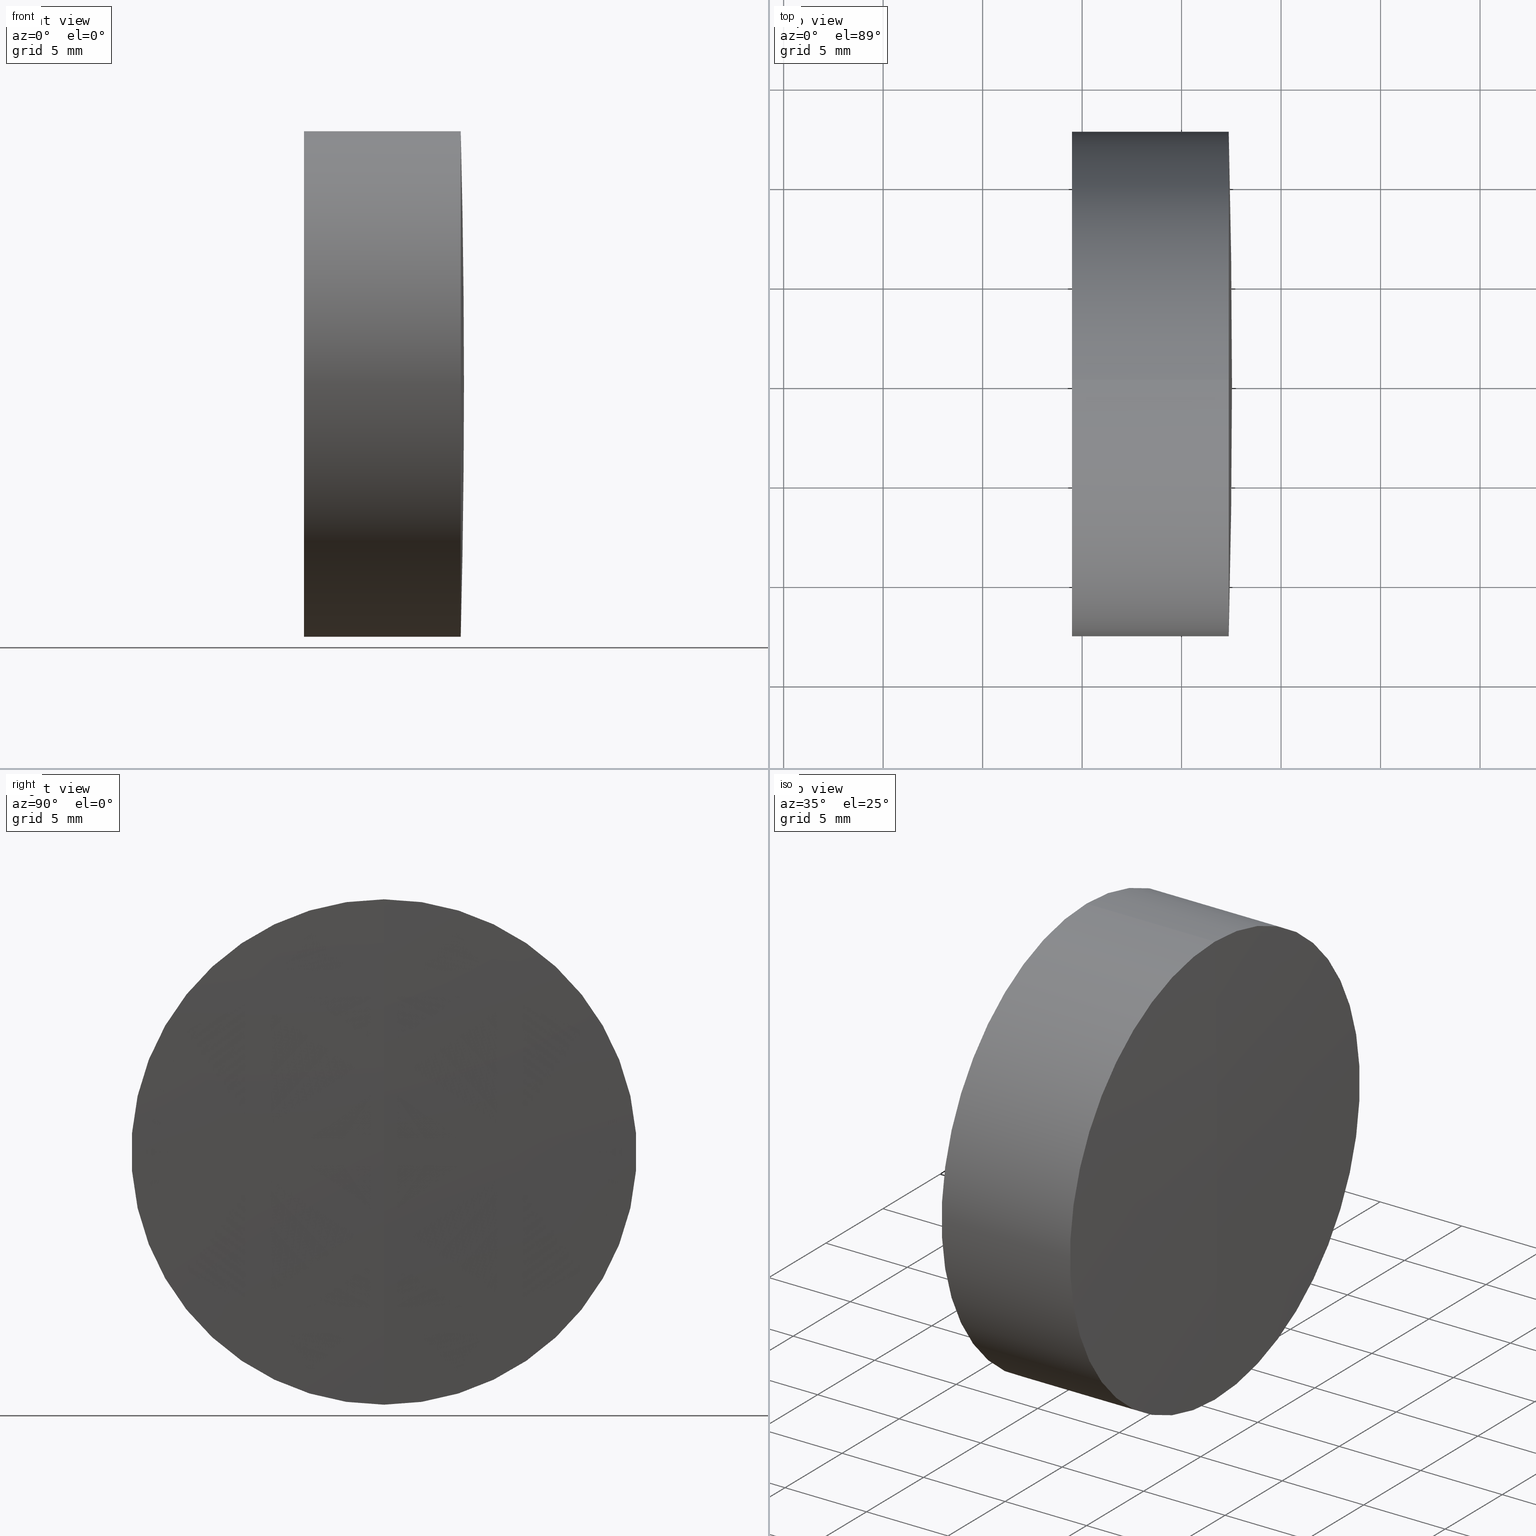
[diagram: canonical four-view strip — front | top / right | iso, engineering-drawing reading convention]
A machine part, canonical four-view strip (front | top / right | iso — engineering-drawing reading convention). The complete STEP part file that produces these views, byte-faithful:
ISO-10303-21;
HEADER;
FILE_DESCRIPTION (( 'STEP AP214' ),
    '1' );
FILE_NAME ('145211.STEP',
    '2019-06-14T01:40:56',
    ( 'user' ),
    ( '΢���й�' ),
    'SwSTEP 2.0',
    'SolidWorks 2016',
    '' );
FILE_SCHEMA (( 'AUTOMOTIVE_DESIGN' ));
ENDSEC;

DATA;
#1 = CARTESIAN_POINT ( 'NONE',  ( 144.4937671120052900, 1.555301434917136300E-015, -12.70000000000005300 ) ) ;
#2 = DIRECTION ( 'NONE',  ( 0.0000000000000000000, 0.0000000000000000000, -1.000000000000000000 ) ) ;
#3 = AXIS2_PLACEMENT_3D ( 'NONE', #50, #74, #339 ) ;
#4 = CARTESIAN_POINT ( 'NONE',  ( 150.5048937077423800, 0.0000000000000000000, 12.69999999999996900 ) ) ;
#5 = EDGE_CURVE ( 'NONE', #44, #139, #275, .T. ) ;
#6 =( NAMED_UNIT ( * ) PLANE_ANGLE_UNIT ( ) SI_UNIT ( $, .RADIAN. ) );
#7 = DIRECTION ( 'NONE',  ( 0.0000000000000000000, -1.000000000000000000, 0.0000000000000000000 ) ) ;
#8 = ORIENTED_EDGE ( 'NONE', *, *, #159, .F. ) ;
#9 = SPHERICAL_SURFACE ( 'NONE', #151, 46.39000000000000100 ) ;
#10 = CARTESIAN_POINT ( 'NONE',  ( 144.4937671120052900, 0.0000000000000000000, 0.0000000000000000000 ) ) ;
#11 = AXIS2_PLACEMENT_3D ( 'NONE', #235, #150, #181 ) ;
#12 = PRODUCT_CONTEXT ( 'NONE', #243, 'mechanical' ) ;
#13 = ADVANCED_FACE ( 'NONE', ( #42 ), #155, .T. ) ;
#14 = AXIS2_PLACEMENT_3D ( 'NONE', #34, #220, #133 ) ;
#15 = CARTESIAN_POINT ( 'NONE',  ( 195.1226267294905800, 0.0000000000000000000, -6.053013924752350100E-014 ) ) ;
#16 = LINE ( 'NONE', #99, #283 ) ;
#17 =( NAMED_UNIT ( * ) PLANE_ANGLE_UNIT ( ) SI_UNIT ( $, .RADIAN. ) );
#18 = CIRCLE ( 'NONE', #276, 12.69999999999999000 ) ;
#19 = VERTEX_POINT ( 'NONE', #115 ) ;
#20 = DIRECTION ( 'NONE',  ( -1.000000000000000000, -0.0000000000000000000, 2.184929092829751300E-016 ) ) ;
#21 = VERTEX_POINT ( 'NONE', #272 ) ;
#22 = CARTESIAN_POINT ( 'NONE',  ( 146.7326267294905600, 0.0000000000000000000, -6.637079679227676800E-014 ) ) ;
#23 = CARTESIAN_POINT ( 'NONE',  ( 150.5048937077423800, 1.555301434917137400E-015, -12.70000000000004400 ) ) ;
#24 =( NAMED_UNIT ( * ) PLANE_ANGLE_UNIT ( ) SI_UNIT ( $, .RADIAN. ) );
#25 = DIRECTION ( 'NONE',  ( 0.0000000000000000000, 0.0000000000000000000, -1.000000000000000000 ) ) ;
#26 = AXIS2_PLACEMENT_3D ( 'NONE', #280, #79, #260 ) ;
#27 = FACE_OUTER_BOUND ( 'NONE', #343, .T. ) ;
#28 = EDGE_CURVE ( 'NONE', #239, #149, #162, .T. ) ;
#29 = ORIENTED_EDGE ( 'NONE', *, *, #40, .F. ) ;
#30 = CARTESIAN_POINT ( 'NONE',  ( -185.2744740506581700, 0.0000000000000000000, 2.052032605930108700E-014 ) ) ;
#31 = CARTESIAN_POINT ( 'NONE',  ( 195.1226267294905800, 0.0000000000000000000, -6.053013924752350100E-014 ) ) ;
#32 = AXIS2_PLACEMENT_3D ( 'NONE', #10, #289, #61 ) ;
#33 = ORIENTED_EDGE ( 'NONE', *, *, #142, .T. ) ;
#34 = CARTESIAN_POINT ( 'NONE',  ( 195.1226267294905800, 0.0000000000000000000, -6.053013924752350100E-014 ) ) ;
#35 =( NAMED_UNIT ( * ) SI_UNIT ( $, .STERADIAN. ) SOLID_ANGLE_UNIT ( ) );
#36 = UNCERTAINTY_MEASURE_WITH_UNIT (LENGTH_MEASURE( 1.000000000000000100E-005 ), #179, 'distance_accuracy_value', 'NONE');
#37 = ORIENTED_EDGE ( 'NONE', *, *, #40, .T. ) ;
#38 = PRODUCT_DEFINITION ( 'δ֪', '', #312, #287 ) ;
#39 = DIRECTION ( 'NONE',  ( 0.0000000000000000000, -1.224646799147353200E-016, 1.000000000000000000 ) ) ;
#40 = EDGE_CURVE ( 'NONE', #304, #208, #256, .T. ) ;
#41 = SHAPE_DEFINITION_REPRESENTATION ( #199, #314 ) ;
#42 = FACE_OUTER_BOUND ( 'NONE', #211, .T. ) ;
#43 = SPHERICAL_SURFACE ( 'NONE', #132, 37.14000000000000100 ) ;
#44 = VERTEX_POINT ( 'NONE', #329 ) ;
#45 = EDGE_LOOP ( 'NONE', ( #233, #284, #166 ) ) ;
#46 = CIRCLE ( 'NONE', #52, 12.69999999999997100 ) ;
#47 = EDGE_CURVE ( 'NONE', #239, #337, #286, .T. ) ;
#48 = DIRECTION ( 'NONE',  ( -1.000000000000000000, -0.0000000000000000000, -0.0000000000000000000 ) ) ;
#49 = AXIS2_PLACEMENT_3D ( 'NONE', #15, #169, #305 ) ;
#50 = CARTESIAN_POINT ( 'NONE',  ( 150.5048937077423800, 0.0000000000000000000, 0.0000000000000000000 ) ) ;
#51 = DIRECTION ( 'NONE',  ( -1.000000000000000000, -0.0000000000000000000, 2.184929092829751300E-016 ) ) ;
#52 = AXIS2_PLACEMENT_3D ( 'NONE', #57, #86, #295 ) ;
#53 = ORIENTED_EDGE ( 'NONE', *, *, #83, .T. ) ;
#54 = CARTESIAN_POINT ( 'NONE',  ( 144.4937671120052900, 0.0000000000000000000, 12.69999999999993400 ) ) ;
#55 = MANIFOLD_SOLID_BREP ( '��ת1', #214 ) ;
#56 = CARTESIAN_POINT ( 'NONE',  ( 109.5926267294905600, 0.0000000000000000000, -6.053013924752370300E-014 ) ) ;
#57 = CARTESIAN_POINT ( 'NONE',  ( 150.5048937077423800, 0.0000000000000000000, 0.0000000000000000000 ) ) ;
#58 = CLOSED_SHELL ( 'NONE', ( #198, #13, #219, #299, #332, #324 ) ) ;
#59 = SURFACE_SIDE_STYLE ('',( #218 ) ) ;
#60 = SURFACE_STYLE_USAGE ( .BOTH. , #248 ) ;
#61 = DIRECTION ( 'NONE',  ( 0.0000000000000000000, 0.0000000000000000000, 1.000000000000000000 ) ) ;
#62 = ORIENTED_EDGE ( 'NONE', *, *, #80, .F. ) ;
#63 = AXIS2_PLACEMENT_3D ( 'NONE', #141, #221, #195 ) ;
#64 = ADVANCED_FACE ( 'NONE', ( #269 ), #241, .T. ) ;
#65 = MANIFOLD_SOLID_BREP ( '��ת3', #58 ) ;
#66 = STYLED_ITEM ( 'NONE', ( #131 ), #65 ) ;
#67 = DIRECTION ( 'NONE',  ( -1.000000000000000000, -0.0000000000000000000, 2.184929092829751300E-016 ) ) ;
#68 = FACE_OUTER_BOUND ( 'NONE', #45, .T. ) ;
#69 = CYLINDRICAL_SURFACE ( 'NONE', #300, 12.69999999999999000 ) ;
#70 = ORIENTED_EDGE ( 'NONE', *, *, #322, .T. ) ;
#71 = AXIS2_PLACEMENT_3D ( 'NONE', #161, #336, #114 ) ;
#72 = ORIENTED_EDGE ( 'NONE', *, *, #242, .F. ) ;
#73 = LINE ( 'NONE', #152, #190 ) ;
#74 = DIRECTION ( 'NONE',  ( -1.000000000000000000, -0.0000000000000000000, -0.0000000000000000000 ) ) ;
#75 = CIRCLE ( 'NONE', #244, 12.69999999999999000 ) ;
#76 = CARTESIAN_POINT ( 'NONE',  ( 152.3694498868020200, 0.0000000000000000000, 0.0000000000000000000 ) ) ;
#77 = DIRECTION ( 'NONE',  ( 0.0000000000000000000, 0.0000000000000000000, 1.000000000000000000 ) ) ;
#78 = FACE_OUTER_BOUND ( 'NONE', #319, .T. ) ;
#79 = DIRECTION ( 'NONE',  ( 0.0000000000000000000, -1.000000000000000000, 0.0000000000000000000 ) ) ;
#80 = EDGE_CURVE ( 'NONE', #208, #21, #160, .T. ) ;
#81 =( LENGTH_UNIT ( ) NAMED_UNIT ( * ) SI_UNIT ( .MILLI., .METRE. ) );
#82 = DIRECTION ( 'NONE',  ( -1.000000000000000000, -0.0000000000000000000, -0.0000000000000000000 ) ) ;
#83 = EDGE_CURVE ( 'NONE', #19, #139, #277, .T. ) ;
#84 = SPHERICAL_SURFACE ( 'NONE', #338, 494.2999999999999500 ) ;
#85 = COLOUR_RGB ( '',1.000000000000000000, 1.000000000000000000, 1.000000000000000000 ) ;
#86 = DIRECTION ( 'NONE',  ( -1.000000000000000000, -0.0000000000000000000, -0.0000000000000000000 ) ) ;
#87 =( LENGTH_UNIT ( ) NAMED_UNIT ( * ) SI_UNIT ( .MILLI., .METRE. ) );
#88 = FILL_AREA_STYLE ('',( #327 ) ) ;
#89 = ORIENTED_EDGE ( 'NONE', *, *, #344, .T. ) ;
#90 = AXIS2_PLACEMENT_3D ( 'NONE', #170, #116, #39 ) ;
#91 = ORIENTED_EDGE ( 'NONE', *, *, #28, .F. ) ;
#92 = DIRECTION ( 'NONE',  ( -1.000000000000000000, -0.0000000000000000000, 2.184929092829751300E-016 ) ) ;
#93 = STYLED_ITEM ( 'NONE', ( #232 ), #55 ) ;
#94 = ADVANCED_FACE ( 'NONE', ( #268 ), #216, .F. ) ;
#95 = FACE_OUTER_BOUND ( 'NONE', #122, .T. ) ;
#96 = PRODUCT ( '145211', '145211', '', ( #12 ) ) ;
#97 = PRESENTATION_LAYER_ASSIGNMENT (  '', '', ( #66 ) ) ;
#98 = DIRECTION ( 'NONE',  ( -1.000000000000000000, -0.0000000000000000000, 2.184929092829751300E-016 ) ) ;
#99 = CARTESIAN_POINT ( 'NONE',  ( -185.2744740506581700, 0.0000000000000000000, 12.70000000000001200 ) ) ;
#100 = DIRECTION ( 'NONE',  ( -1.000000000000000000, -0.0000000000000000000, -0.0000000000000000000 ) ) ;
#101 = ORIENTED_EDGE ( 'NONE', *, *, #123, .F. ) ;
#102 = MECHANICAL_DESIGN_GEOMETRIC_PRESENTATION_REPRESENTATION (  '', ( #66 ), #250 ) ;
#103 = CARTESIAN_POINT ( 'NONE',  ( 150.5048937077423800, 0.0000000000000000000, 12.69999999999993900 ) ) ;
#104 = ORIENTED_EDGE ( 'NONE', *, *, #164, .T. ) ;
#105 = EDGE_LOOP ( 'NONE', ( #91, #186, #193 ) ) ;
#106 = DIRECTION ( 'NONE',  ( 3.736614918636095100E-016, 0.0000000000000000000, 1.000000000000000000 ) ) ;
#107 = DIRECTION ( 'NONE',  ( 0.0000000000000000000, 0.0000000000000000000, 1.000000000000000000 ) ) ;
#108 = ORIENTED_EDGE ( 'NONE', *, *, #197, .T. ) ;
#109 = ORIENTED_EDGE ( 'NONE', *, *, #47, .F. ) ;
#110 = CARTESIAN_POINT ( 'NONE',  ( 195.1226267294905800, 0.0000000000000000000, -6.053013924752350100E-014 ) ) ;
#111 = DIRECTION ( 'NONE',  ( 0.0000000000000000000, 0.0000000000000000000, 1.000000000000000000 ) ) ;
#112 = ORIENTED_EDGE ( 'NONE', *, *, #5, .F. ) ;
#113 = DIRECTION ( 'NONE',  ( -1.000000000000000000, -0.0000000000000000000, 2.184929092829751300E-016 ) ) ;
#114 = DIRECTION ( 'NONE',  ( 0.0000000000000000000, 0.0000000000000000000, 1.000000000000000000 ) ) ;
#115 = CARTESIAN_POINT ( 'NONE',  ( 152.3694498868020200, 0.0000000000000000000, 12.69999999999993700 ) ) ;
#116 = DIRECTION ( 'NONE',  ( -0.0000000000000000000, 1.000000000000000000, 1.224646799147353200E-016 ) ) ;
#117 = ORIENTED_EDGE ( 'NONE', *, *, #281, .F. ) ;
#118 = ADVANCED_FACE ( 'NONE', ( #78 ), #321, .F. ) ;
#119 =( GEOMETRIC_REPRESENTATION_CONTEXT ( 3 ) GLOBAL_UNCERTAINTY_ASSIGNED_CONTEXT ( ( #279 ) ) GLOBAL_UNIT_ASSIGNED_CONTEXT ( ( #165, #6, #191 ) ) REPRESENTATION_CONTEXT ( 'NONE', 'WORKASPACE' ) );
#120 = CIRCLE ( 'NONE', #26, 494.2999999999999500 ) ;
#121 = ORIENTED_EDGE ( 'NONE', *, *, #322, .F. ) ;
#122 = EDGE_LOOP ( 'NONE', ( #189, #89, #8 ) ) ;
#123 = EDGE_CURVE ( 'NONE', #213, #146, #46, .T. ) ;
#124 = CARTESIAN_POINT ( 'NONE',  ( -341.7673732705093200, 0.0000000000000000000, 0.0000000000000000000 ) ) ;
#125 = CARTESIAN_POINT ( 'NONE',  ( 144.4937671120052900, 0.0000000000000000000, 0.0000000000000000000 ) ) ;
#126 = CARTESIAN_POINT ( 'NONE',  ( 150.5048937077423800, 1.555301434917134700E-015, -12.70000000000002800 ) ) ;
#127 = DIRECTION ( 'NONE',  ( 0.0000000000000000000, 0.0000000000000000000, 1.000000000000000000 ) ) ;
#128 = AXIS2_PLACEMENT_3D ( 'NONE', #56, #225, #271 ) ;
#129 = COLOUR_RGB ( '',1.000000000000000000, 1.000000000000000000, 1.000000000000000000 ) ;
#130 = VECTOR ( 'NONE', #290, 1000.000000000000000 ) ;
#131 = PRESENTATION_STYLE_ASSIGNMENT (( #245 ) ) ;
#132 = AXIS2_PLACEMENT_3D ( 'NONE', #262, #263, #177 ) ;
#133 = DIRECTION ( 'NONE',  ( 0.0000000000000000000, 1.224646799147353200E-016, -1.000000000000000000 ) ) ;
#134 = ORIENTED_EDGE ( 'NONE', *, *, #28, .T. ) ;
#135 = EDGE_LOOP ( 'NONE', ( #109, #134, #145 ) ) ;
#136 = FILL_AREA_STYLE_COLOUR ( '', #203 ) ;
#137 = DIRECTION ( 'NONE',  ( -0.0000000000000000000, 1.000000000000000000, 0.0000000000000000000 ) ) ;
#138 = CARTESIAN_POINT ( 'NONE',  ( 144.4937671120052900, 0.0000000000000000000, -5.153169634145900400E-014 ) ) ;
#139 = VERTEX_POINT ( 'NONE', #163 ) ;
#140 = LINE ( 'NONE', #180, #130 ) ;
#141 = CARTESIAN_POINT ( 'NONE',  ( 0.0000000000000000000, 0.0000000000000000000, 0.0000000000000000000 ) ) ;
#142 = EDGE_CURVE ( 'NONE', #304, #337, #188, .T. ) ;
#143 = DIRECTION ( 'NONE',  ( -1.000000000000000000, -0.0000000000000000000, -0.0000000000000000000 ) ) ;
#144 = APPLICATION_PROTOCOL_DEFINITION ( 'draft international standard', 'automotive_design', 1998, #171 ) ;
#145 = ORIENTED_EDGE ( 'NONE', *, *, #255, .T. ) ;
#146 = VERTEX_POINT ( 'NONE', #4 ) ;
#147 = AXIS2_PLACEMENT_3D ( 'NONE', #76, #100, #278 ) ;
#148 = ORIENTED_EDGE ( 'NONE', *, *, #142, .F. ) ;
#149 = VERTEX_POINT ( 'NONE', #54 ) ;
#150 = DIRECTION ( 'NONE',  ( 0.0000000000000000000, 1.000000000000000000, 0.0000000000000000000 ) ) ;
#151 = AXIS2_PLACEMENT_3D ( 'NONE', #202, #328, #2 ) ;
#152 = CARTESIAN_POINT ( 'NONE',  ( 144.4937671120052900, 0.0000000000000000000, 12.69999999999995500 ) ) ;
#153 = SPHERICAL_SURFACE ( 'NONE', #71, 46.38999999999998600 ) ;
#154 = DIRECTION ( 'NONE',  ( 0.0000000000000000000, 1.000000000000000000, 0.0000000000000000000 ) ) ;
#155 = CYLINDRICAL_SURFACE ( 'NONE', #32, 12.69999999999995500 ) ;
#156 = DIRECTION ( 'NONE',  ( 0.0000000000000000000, 0.0000000000000000000, -1.000000000000000000 ) ) ;
#157 = CIRCLE ( 'NONE', #49, 46.39000000000000100 ) ;
#158 = CIRCLE ( 'NONE', #265, 46.38999999999998600 ) ;
#159 = EDGE_CURVE ( 'NONE', #146, #226, #210, .T. ) ;
#160 = CIRCLE ( 'NONE', #14, 46.39000000000000100 ) ;
#161 = CARTESIAN_POINT ( 'NONE',  ( 195.1226267294905800, 0.0000000000000000000, -6.053013924752350100E-014 ) ) ;
#162 = CIRCLE ( 'NONE', #341, 37.14000000000000100 ) ;
#163 = CARTESIAN_POINT ( 'NONE',  ( 152.3694498868020200, 1.555301434917131900E-015, -12.69999999999993700 ) ) ;
#164 = EDGE_CURVE ( 'NONE', #44, #19, #120, .T. ) ;
#165 =( LENGTH_UNIT ( ) NAMED_UNIT ( * ) SI_UNIT ( .MILLI., .METRE. ) );
#166 = ORIENTED_EDGE ( 'NONE', *, *, #159, .T. ) ;
#167 = DIRECTION ( 'NONE',  ( 0.0000000000000000000, 0.0000000000000000000, -1.000000000000000000 ) ) ;
#168 = EDGE_CURVE ( 'NONE', #139, #19, #340, .T. ) ;
#169 = DIRECTION ( 'NONE',  ( -0.0000000000000000000, 1.000000000000000000, 0.0000000000000000000 ) ) ;
#170 = CARTESIAN_POINT ( 'NONE',  ( -341.7673732705093200, 0.0000000000000000000, 0.0000000000000000000 ) ) ;
#171 = APPLICATION_CONTEXT ( 'automotive_design' ) ;
#172 =( NAMED_UNIT ( * ) SI_UNIT ( $, .STERADIAN. ) SOLID_ANGLE_UNIT ( ) );
#173 = CARTESIAN_POINT ( 'NONE',  ( 195.1226267294905800, 0.0000000000000000000, -6.053013924752350100E-014 ) ) ;
#174 = ORIENTED_EDGE ( 'NONE', *, *, #257, .T. ) ;
#175 = MECHANICAL_DESIGN_GEOMETRIC_PRESENTATION_REPRESENTATION (  '', ( #318 ), #291 ) ;
#176 = DIRECTION ( 'NONE',  ( 0.0000000000000000000, 0.0000000000000000000, 1.000000000000000000 ) ) ;
#177 = DIRECTION ( 'NONE',  ( 3.736614918636095100E-016, 0.0000000000000000000, 1.000000000000000000 ) ) ;
#178 = ORIENTED_EDGE ( 'NONE', *, *, #80, .T. ) ;
#179 =( LENGTH_UNIT ( ) NAMED_UNIT ( * ) SI_UNIT ( .MILLI., .METRE. ) );
#180 = CARTESIAN_POINT ( 'NONE',  ( 144.4937671120052900, 1.555301434917132900E-015, -12.69999999999995500 ) ) ;
#181 = DIRECTION ( 'NONE',  ( 0.0000000000000000000, 0.0000000000000000000, 1.000000000000000000 ) ) ;
#182 = FACE_OUTER_BOUND ( 'NONE', #264, .T. ) ;
#183 = PRESENTATION_LAYER_ASSIGNMENT (  '', '', ( #318 ) ) ;
#184 = EDGE_CURVE ( 'NONE', #146, #213, #237, .T. ) ;
#185 = CARTESIAN_POINT ( 'NONE',  ( 195.1226267294905800, 0.0000000000000000000, -6.053013924752350100E-014 ) ) ;
#186 = ORIENTED_EDGE ( 'NONE', *, *, #47, .T. ) ;
#187 = MECHANICAL_DESIGN_GEOMETRIC_PRESENTATION_REPRESENTATION (  '', ( #93 ), #119 ) ;
#188 = LINE ( 'NONE', #323, #238 ) ;
#189 = ORIENTED_EDGE ( 'NONE', *, *, #184, .T. ) ;
#190 = VECTOR ( 'NONE', #48, 1000.000000000000000 ) ;
#191 =( NAMED_UNIT ( * ) SI_UNIT ( $, .STERADIAN. ) SOLID_ANGLE_UNIT ( ) );
#192 = CARTESIAN_POINT ( 'NONE',  ( 109.5926267294905600, 0.0000000000000000000, -6.053013924752370300E-014 ) ) ;
#193 = ORIENTED_EDGE ( 'NONE', *, *, #281, .T. ) ;
#194 = ORIENTED_EDGE ( 'NONE', *, *, #234, .T. ) ;
#195 = DIRECTION ( 'NONE',  ( 1.000000000000000000, 0.0000000000000000000, 0.0000000000000000000 ) ) ;
#196 = SPHERICAL_SURFACE ( 'NONE', #11, 494.2999999999999500 ) ;
#197 = EDGE_CURVE ( 'NONE', #19, #146, #73, .T. ) ;
#198 = ADVANCED_FACE ( 'NONE', ( #307 ), #196, .T. ) ;
#199 = PRODUCT_DEFINITION_SHAPE ( 'NONE', 'NONE',  #38 ) ;
#200 = DIRECTION ( 'NONE',  ( 0.0000000000000000000, -1.224646799147353500E-016, 1.000000000000000000 ) ) ;
#201 = ORIENTED_EDGE ( 'NONE', *, *, #168, .F. ) ;
#202 = CARTESIAN_POINT ( 'NONE',  ( 195.1226267294905800, 0.0000000000000000000, -6.053013924752350100E-014 ) ) ;
#203 = COLOUR_RGB ( '',1.000000000000000000, 1.000000000000000000, 1.000000000000000000 ) ;
#204 = AXIS2_PLACEMENT_3D ( 'NONE', #297, #113, #315 ) ;
#205 = DIRECTION ( 'NONE',  ( -1.000000000000000000, -0.0000000000000000000, 2.184929092829751300E-016 ) ) ;
#206 = FACE_OUTER_BOUND ( 'NONE', #247, .T. ) ;
#207 = AXIS2_PLACEMENT_3D ( 'NONE', #138, #67, #253 ) ;
#208 = VERTEX_POINT ( 'NONE', #103 ) ;
#209 = DIRECTION ( 'NONE',  ( 0.0000000000000000000, -1.000000000000000000, 0.0000000000000000000 ) ) ;
#210 = CIRCLE ( 'NONE', #236, 46.38999999999998600 ) ;
#211 = EDGE_LOOP ( 'NONE', ( #53, #70, #240, #292 ) ) ;
#212 = DIRECTION ( 'NONE',  ( 0.0000000000000000000, 1.000000000000000000, 0.0000000000000000000 ) ) ;
#213 = VERTEX_POINT ( 'NONE', #126 ) ;
#214 = CLOSED_SHELL ( 'NONE', ( #118, #64, #94, #229, #301, #346 ) ) ;
#215 = AXIS2_PLACEMENT_3D ( 'NONE', #266, #82, #107 ) ;
#216 = SPHERICAL_SURFACE ( 'NONE', #227, 37.14000000000000100 ) ;
#217 = CARTESIAN_POINT ( 'NONE',  ( 148.7326267294905900, 0.0000000000000000000, -5.768957099690121500E-014 ) ) ;
#218 = SURFACE_STYLE_FILL_AREA ( #325 ) ;
#219 = ADVANCED_FACE ( 'NONE', ( #95 ), #252, .T. ) ;
#220 = DIRECTION ( 'NONE',  ( -2.675766419897885000E-032, -1.000000000000000000, -1.224646799147353200E-016 ) ) ;
#221 = DIRECTION ( 'NONE',  ( 0.0000000000000000000, 0.0000000000000000000, 1.000000000000000000 ) ) ;
#222 = DIRECTION ( 'NONE',  ( -1.000000000000000000, -0.0000000000000000000, 2.184929092829751300E-016 ) ) ;
#223 = SURFACE_STYLE_USAGE ( .BOTH. , #347 ) ;
#224 =( NAMED_UNIT ( * ) SI_UNIT ( $, .STERADIAN. ) SOLID_ANGLE_UNIT ( ) );
#225 = DIRECTION ( 'NONE',  ( 2.675766419897885000E-032, 1.000000000000000000, 1.224646799147353200E-016 ) ) ;
#226 = VERTEX_POINT ( 'NONE', #217 ) ;
#227 = AXIS2_PLACEMENT_3D ( 'NONE', #285, #137, #106 ) ;
#228 = UNCERTAINTY_MEASURE_WITH_UNIT (LENGTH_MEASURE( 1.000000000000000100E-005 ), #81, 'distance_accuracy_value', 'NONE');
#229 = ADVANCED_FACE ( 'NONE', ( #274 ), #43, .F. ) ;
#230 =( GEOMETRIC_REPRESENTATION_CONTEXT ( 3 ) GLOBAL_UNCERTAINTY_ASSIGNED_CONTEXT ( ( #228 ) ) GLOBAL_UNIT_ASSIGNED_CONTEXT ( ( #81, #17, #172 ) ) REPRESENTATION_CONTEXT ( 'NONE', 'WORKASPACE' ) );
#231 = FACE_OUTER_BOUND ( 'NONE', #303, .T. ) ;
#232 = PRESENTATION_STYLE_ASSIGNMENT (( #60 ) ) ;
#233 = ORIENTED_EDGE ( 'NONE', *, *, #344, .F. ) ;
#234 = EDGE_CURVE ( 'NONE', #208, #304, #75, .T. ) ;
#235 = CARTESIAN_POINT ( 'NONE',  ( -341.7673732705093200, 0.0000000000000000000, 0.0000000000000000000 ) ) ;
#236 = AXIS2_PLACEMENT_3D ( 'NONE', #185, #209, #25 ) ;
#237 = CIRCLE ( 'NONE', #3, 12.69999999999997100 ) ;
#238 = VECTOR ( 'NONE', #222, 1000.000000000000000 ) ;
#239 = VERTEX_POINT ( 'NONE', #22 ) ;
#240 = ORIENTED_EDGE ( 'NONE', *, *, #184, .F. ) ;
#241 = CYLINDRICAL_SURFACE ( 'NONE', #326, 12.69999999999999000 ) ;
#242 = EDGE_CURVE ( 'NONE', #208, #149, #16, .T. ) ;
#243 = APPLICATION_CONTEXT ( 'automotive_design' ) ;
#244 = AXIS2_PLACEMENT_3D ( 'NONE', #258, #205, #176 ) ;
#245 = SURFACE_STYLE_USAGE ( .BOTH. , #59 ) ;
#246 = ORIENTED_EDGE ( 'NONE', *, *, #164, .F. ) ;
#247 = EDGE_LOOP ( 'NONE', ( #62, #29, #174 ) ) ;
#248 = SURFACE_SIDE_STYLE ('',( #294 ) ) ;
#249 = PRODUCT_RELATED_PRODUCT_CATEGORY ( 'part', '', ( #96 ) ) ;
#250 =( GEOMETRIC_REPRESENTATION_CONTEXT ( 3 ) GLOBAL_UNCERTAINTY_ASSIGNED_CONTEXT ( ( #334 ) ) GLOBAL_UNIT_ASSIGNED_CONTEXT ( ( #87, #270, #224 ) ) REPRESENTATION_CONTEXT ( 'NONE', 'WORKASPACE' ) );
#251 = CIRCLE ( 'NONE', #207, 12.69999999999999000 ) ;
#252 = SPHERICAL_SURFACE ( 'NONE', #333, 46.38999999999998600 ) ;
#253 = DIRECTION ( 'NONE',  ( 0.0000000000000000000, 0.0000000000000000000, 1.000000000000000000 ) ) ;
#254 = CYLINDRICAL_SURFACE ( 'NONE', #261, 12.69999999999995500 ) ;
#255 = EDGE_CURVE ( 'NONE', #149, #337, #18, .T. ) ;
#256 = CIRCLE ( 'NONE', #204, 12.69999999999999000 ) ;
#257 = EDGE_CURVE ( 'NONE', #304, #21, #157, .T. ) ;
#258 = CARTESIAN_POINT ( 'NONE',  ( 150.5048937077423800, 0.0000000000000000000, -5.284508487942986600E-014 ) ) ;
#259 = ORIENTED_EDGE ( 'NONE', *, *, #168, .T. ) ;
#260 = DIRECTION ( 'NONE',  ( 0.0000000000000000000, 0.0000000000000000000, -1.000000000000000000 ) ) ;
#261 = AXIS2_PLACEMENT_3D ( 'NONE', #125, #143, #342 ) ;
#262 = CARTESIAN_POINT ( 'NONE',  ( 109.5926267294905600, 0.0000000000000000000, -6.053013924752370300E-014 ) ) ;
#263 = DIRECTION ( 'NONE',  ( -0.0000000000000000000, 1.000000000000000000, 0.0000000000000000000 ) ) ;
#264 = EDGE_LOOP ( 'NONE', ( #121, #259, #108, #101 ) ) ;
#265 = AXIS2_PLACEMENT_3D ( 'NONE', #173, #335, #200 ) ;
#266 = CARTESIAN_POINT ( 'NONE',  ( 152.3694498868020200, 0.0000000000000000000, 0.0000000000000000000 ) ) ;
#267 = ORIENTED_EDGE ( 'NONE', *, *, #83, .F. ) ;
#268 = FACE_OUTER_BOUND ( 'NONE', #105, .T. ) ;
#269 = FACE_OUTER_BOUND ( 'NONE', #331, .T. ) ;
#270 =( NAMED_UNIT ( * ) PLANE_ANGLE_UNIT ( ) SI_UNIT ( $, .RADIAN. ) );
#271 = DIRECTION ( 'NONE',  ( 0.0000000000000000000, -1.224646799147353200E-016, 1.000000000000000000 ) ) ;
#272 = CARTESIAN_POINT ( 'NONE',  ( 148.7326267294905600, 0.0000000000000000000, -5.323482143650857100E-014 ) ) ;
#273 = ORIENTED_EDGE ( 'NONE', *, *, #255, .F. ) ;
#274 = FACE_OUTER_BOUND ( 'NONE', #135, .T. ) ;
#275 = CIRCLE ( 'NONE', #90, 494.2999999999999500 ) ;
#276 = AXIS2_PLACEMENT_3D ( 'NONE', #308, #98, #293 ) ;
#277 = CIRCLE ( 'NONE', #215, 12.69999999999993700 ) ;
#278 = DIRECTION ( 'NONE',  ( 0.0000000000000000000, 0.0000000000000000000, 1.000000000000000000 ) ) ;
#279 = UNCERTAINTY_MEASURE_WITH_UNIT (LENGTH_MEASURE( 1.000000000000000100E-005 ), #165, 'distance_accuracy_value', 'NONE');
#280 = CARTESIAN_POINT ( 'NONE',  ( -341.7673732705093200, 0.0000000000000000000, 0.0000000000000000000 ) ) ;
#281 = EDGE_CURVE ( 'NONE', #337, #149, #251, .T. ) ;
#282 = DIRECTION ( 'NONE',  ( -0.0000000000000000000, -1.000000000000000000, -0.0000000000000000000 ) ) ;
#283 = VECTOR ( 'NONE', #20, 1000.000000000000000 ) ;
#284 = ORIENTED_EDGE ( 'NONE', *, *, #123, .T. ) ;
#285 = CARTESIAN_POINT ( 'NONE',  ( 109.5926267294905600, 0.0000000000000000000, -6.053013924752370300E-014 ) ) ;
#286 = CIRCLE ( 'NONE', #128, 37.14000000000000100 ) ;
#287 = PRODUCT_DEFINITION_CONTEXT ( 'detailed design', #171, 'design' ) ;
#288 = FILL_AREA_STYLE ('',( #302 ) ) ;
#289 = DIRECTION ( 'NONE',  ( -1.000000000000000000, -0.0000000000000000000, -0.0000000000000000000 ) ) ;
#290 = DIRECTION ( 'NONE',  ( -1.000000000000000000, -0.0000000000000000000, -0.0000000000000000000 ) ) ;
#291 =( GEOMETRIC_REPRESENTATION_CONTEXT ( 3 ) GLOBAL_UNCERTAINTY_ASSIGNED_CONTEXT ( ( #36 ) ) GLOBAL_UNIT_ASSIGNED_CONTEXT ( ( #179, #24, #35 ) ) REPRESENTATION_CONTEXT ( 'NONE', 'WORKASPACE' ) );
#292 = ORIENTED_EDGE ( 'NONE', *, *, #197, .F. ) ;
#293 = DIRECTION ( 'NONE',  ( 0.0000000000000000000, 0.0000000000000000000, 1.000000000000000000 ) ) ;
#294 = SURFACE_STYLE_FILL_AREA ( #88 ) ;
#295 = DIRECTION ( 'NONE',  ( 0.0000000000000000000, 0.0000000000000000000, 1.000000000000000000 ) ) ;
#296 = CARTESIAN_POINT ( 'NONE',  ( -185.2744740506581700, 0.0000000000000000000, 2.052032605930108700E-014 ) ) ;
#297 = CARTESIAN_POINT ( 'NONE',  ( 150.5048937077423800, 0.0000000000000000000, -5.284508487942986600E-014 ) ) ;
#298 = ORIENTED_EDGE ( 'NONE', *, *, #234, .F. ) ;
#299 = ADVANCED_FACE ( 'NONE', ( #68 ), #153, .T. ) ;
#300 = AXIS2_PLACEMENT_3D ( 'NONE', #296, #51, #345 ) ;
#301 = ADVANCED_FACE ( 'NONE', ( #27 ), #69, .T. ) ;
#302 = FILL_AREA_STYLE_COLOUR ( '', #129 ) ;
#303 = EDGE_LOOP ( 'NONE', ( #112, #104, #201 ) ) ;
#304 = VERTEX_POINT ( 'NONE', #23 ) ;
#305 = DIRECTION ( 'NONE',  ( 0.0000000000000000000, 0.0000000000000000000, 1.000000000000000000 ) ) ;
#306 = EDGE_LOOP ( 'NONE', ( #246, #316, #267 ) ) ;
#307 = FACE_OUTER_BOUND ( 'NONE', #306, .T. ) ;
#308 = CARTESIAN_POINT ( 'NONE',  ( 144.4937671120052900, 0.0000000000000000000, -5.153169634145900400E-014 ) ) ;
#309 = PRESENTATION_LAYER_ASSIGNMENT (  '', '', ( #93 ) ) ;
#310 = PRESENTATION_STYLE_ASSIGNMENT (( #223 ) ) ;
#311 = SURFACE_STYLE_FILL_AREA ( #288 ) ;
#312 = PRODUCT_DEFINITION_FORMATION_WITH_SPECIFIED_SOURCE ( '�κ�', '', #96, .NOT_KNOWN. ) ;
#313 = ORIENTED_EDGE ( 'NONE', *, *, #242, .T. ) ;
#314 = ADVANCED_BREP_SHAPE_REPRESENTATION ( '145211', ( #55, #65, #63 ), #230 ) ;
#315 = DIRECTION ( 'NONE',  ( 0.0000000000000000000, 0.0000000000000000000, 1.000000000000000000 ) ) ;
#316 = ORIENTED_EDGE ( 'NONE', *, *, #5, .T. ) ;
#317 = APPLICATION_PROTOCOL_DEFINITION ( 'draft international standard', 'automotive_design', 1998, #243 ) ;
#318 = STYLED_ITEM ( 'NONE', ( #310 ), #314 ) ;
#319 = EDGE_LOOP ( 'NONE', ( #298, #178, #320 ) ) ;
#320 = ORIENTED_EDGE ( 'NONE', *, *, #257, .F. ) ;
#321 = SPHERICAL_SURFACE ( 'NONE', #330, 46.39000000000000100 ) ;
#322 = EDGE_CURVE ( 'NONE', #139, #213, #140, .T. ) ;
#323 = CARTESIAN_POINT ( 'NONE',  ( -185.2744740506581700, 1.555301434917137400E-015, -12.69999999999997100 ) ) ;
#324 = ADVANCED_FACE ( 'NONE', ( #231 ), #84, .T. ) ;
#325 = FILL_AREA_STYLE ('',( #136 ) ) ;
#326 = AXIS2_PLACEMENT_3D ( 'NONE', #30, #92, #111 ) ;
#327 = FILL_AREA_STYLE_COLOUR ( '', #85 ) ;
#328 = DIRECTION ( 'NONE',  ( -0.0000000000000000000, -1.000000000000000000, -0.0000000000000000000 ) ) ;
#329 = CARTESIAN_POINT ( 'NONE',  ( 152.5326267294906300, 0.0000000000000000000, 3.026714564092683200E-014 ) ) ;
#330 = AXIS2_PLACEMENT_3D ( 'NONE', #110, #282, #156 ) ;
#331 = EDGE_LOOP ( 'NONE', ( #194, #33, #273, #72 ) ) ;
#332 = ADVANCED_FACE ( 'NONE', ( #182 ), #254, .T. ) ;
#333 = AXIS2_PLACEMENT_3D ( 'NONE', #31, #154, #127 ) ;
#334 = UNCERTAINTY_MEASURE_WITH_UNIT (LENGTH_MEASURE( 1.000000000000000100E-005 ), #87, 'distance_accuracy_value', 'NONE');
#335 = DIRECTION ( 'NONE',  ( -0.0000000000000000000, 1.000000000000000000, 1.224646799147353200E-016 ) ) ;
#336 = DIRECTION ( 'NONE',  ( 0.0000000000000000000, 1.000000000000000000, 0.0000000000000000000 ) ) ;
#337 = VERTEX_POINT ( 'NONE', #1 ) ;
#338 = AXIS2_PLACEMENT_3D ( 'NONE', #124, #212, #77 ) ;
#339 = DIRECTION ( 'NONE',  ( 0.0000000000000000000, 0.0000000000000000000, 1.000000000000000000 ) ) ;
#340 = CIRCLE ( 'NONE', #147, 12.69999999999993700 ) ;
#341 = AXIS2_PLACEMENT_3D ( 'NONE', #192, #7, #167 ) ;
#342 = DIRECTION ( 'NONE',  ( 0.0000000000000000000, 0.0000000000000000000, 1.000000000000000000 ) ) ;
#343 = EDGE_LOOP ( 'NONE', ( #148, #37, #313, #117 ) ) ;
#344 = EDGE_CURVE ( 'NONE', #213, #226, #158, .T. ) ;
#345 = DIRECTION ( 'NONE',  ( 0.0000000000000000000, 0.0000000000000000000, 1.000000000000000000 ) ) ;
#346 = ADVANCED_FACE ( 'NONE', ( #206 ), #9, .F. ) ;
#347 = SURFACE_SIDE_STYLE ('',( #311 ) ) ;
ENDSEC;
END-ISO-10303-21;
